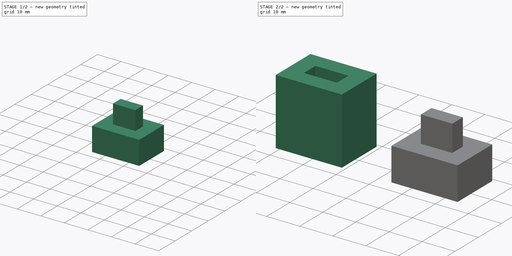
[diagram: build sequence overview — one tinted view per stage of 2, left to right]
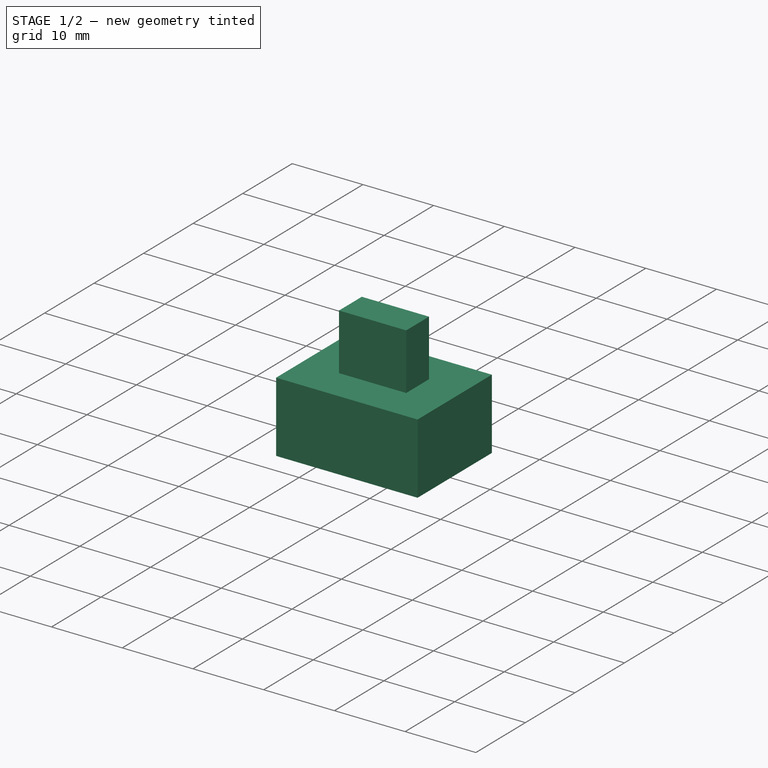
[diagram: stage 1 of 2 — iso view after this stage's code; geometry added in this stage tinted green]
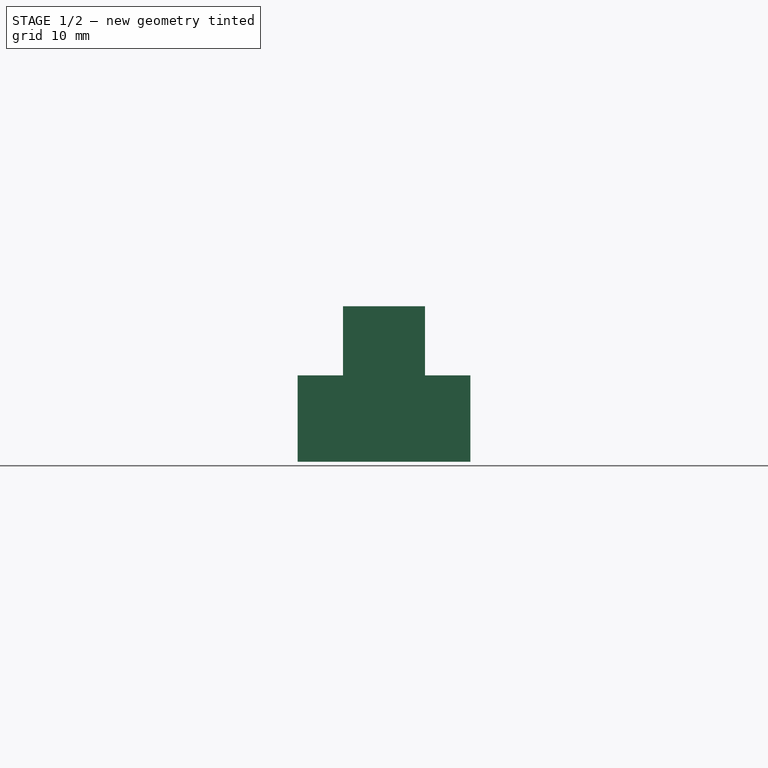
[diagram: stage 1 of 2 — front view after this stage's code; geometry added in this stage tinted green]
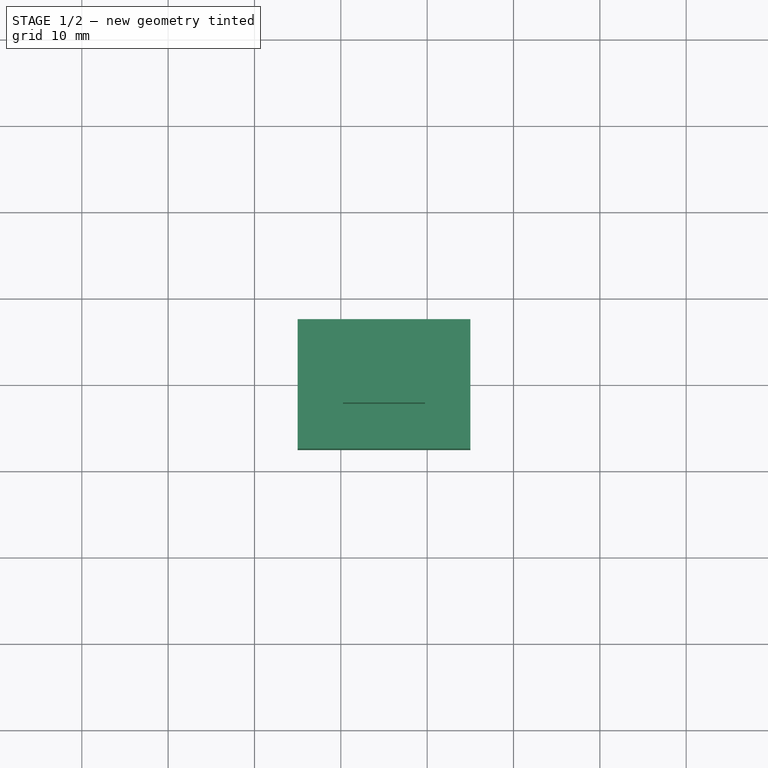
[diagram: stage 1 of 2 — top view after this stage's code; geometry added in this stage tinted green]
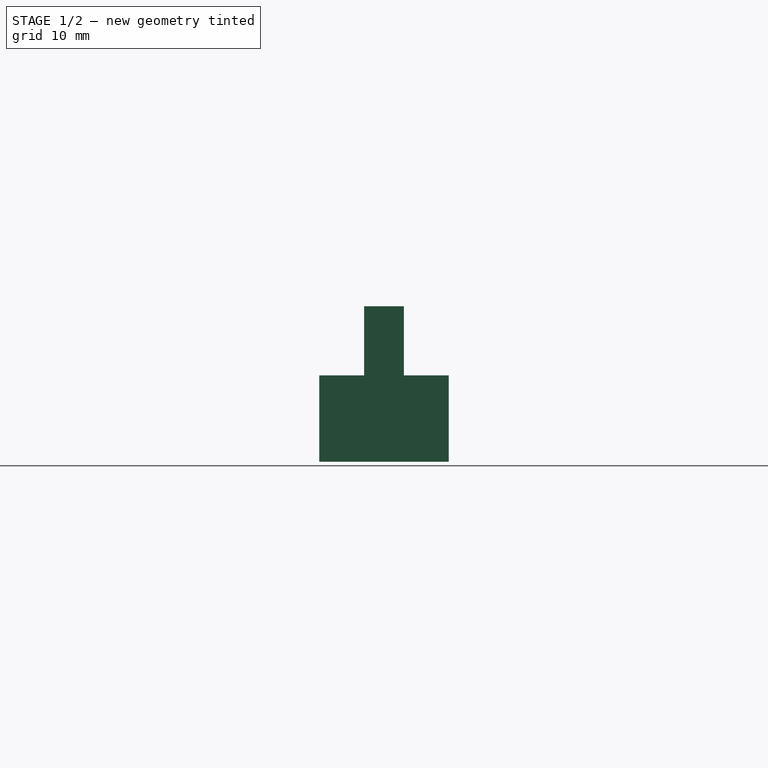
[diagram: stage 1 of 2 — right view after this stage's code; geometry added in this stage tinted green]
FCSTD DOCUMENT  (FreeCAD 2024.207R38947 (Git))
Label: frame_connectors_test
License: All rights reserved
LicenseURL: https://en.wikipedia.org/wiki/All_rights_reserved
objects: Sketcher::SketchObject×4, PartDesign::Pad×3, PartDesign::Body×2, PartDesign::Pocket×1, Part::SubShapeBinder×1
note: 23 computed .brp shape members not serialized (recipe doc carries the construction recipe); baked Part::Feature solids carry a one-line shape summary decoded from their .brp

FEATURE [PartDesign::Body] Body  label="hollow"
  AutoGroupSolids = false
  ClaimAllChildren = false
  ExportMode = 0
  Group = -> [Sketch,Pad,Sketch001,Pocket]
  InvalidShape = false
  Origin = -> Origin
  Tip = -> Pocket
  TreeRank = 10
  ValidateShape = false
  _ExportChildren = -> [Pad,Pocket]
  _GroupVersion = 1
FEATURE [Sketcher::SketchObject] Sketch002
  ArcFitTolerance = 1e-06
  AttachmentSupport = -> [XY_Plane001]
  ExternalBSplineMaxDegree = 5
  ExternalBSplineTolerance = 0.0001
  FullyConstrained = true
  InternalTolerance = 1e-06
  InvalidShape = false
  MakeInternals = false
  MapMode = 5
  Support = -> [XY_Plane001]
  TreeRank = 25
  ValidateShape = false
  sketch-geometry (4):
    g0: LineSegment StartX=25 StartY=7.5 StartZ=0 EndX=45 EndY=7.5 EndZ=0
    g1: LineSegment StartX=45 StartY=7.5 StartZ=0 EndX=45 EndY=-7.5 EndZ=0
    g2: LineSegment StartX=45 StartY=-7.5 StartZ=0 EndX=25 EndY=-7.5 EndZ=0
    g3: LineSegment StartX=25 StartY=-7.5 StartZ=0 EndX=25 EndY=7.5 EndZ=0
  constraints (12):
    c: Coincident(g0,g1)
    c: Coincident(g1,g2)
    c: Coincident(g2,g3)
    c: Coincident(g3,g0)
    c: Horizontal(g0)
    c: Horizontal(g2)
    c: Vertical(g1)
    c: Vertical(g3)
    c: DistanceX(g2,g1) = 20
    c: DistanceY(g2,g0) = 15
    c: DistanceX(g-1,g0) = 25
    c: DistanceY(g-1,g0) = 7.5
FEATURE [Part::SubShapeBinder] Import  label="Import(Pocket)"
  BindCopyOnChange = 0
  BindMode = 0
  ClaimChildren = false
  Context = -> Body001 [Import.]
  EdgeTolerance = 1e-06
  FillStyle = 0
  Fuse = false
  InvalidShape = false
  MakeFace = false
  MergeEdges = true
  OffsetFill = false
  OffsetIntersection = false
  OffsetJoinType = 0
  OffsetOpenResult = false
  Outline = false
  PartialLoad = false
  Relative = true
  SplitEdges = false
  Support = -> [Body[Pocket.]]
  TightBound = false
  TreeRank = 26
  ValidateShape = false
  _Version = 8
FEATURE [PartDesign::Pad] Pad001
  AddSubType = 0
  AlongSketchNormal = false
  AutoTaperInnerAngle = true
  CheckUpToFaceLimits = true
  ClaimChildren = false
  Direction = (0,0,1)
  Fit = 0
  FitJoin = 0
  InnerFit = 0
  InnerFitJoin = 0
  InvalidShape = false
  Length = 10
  Length2 = 10
  Linearize = true
  NewSolid = false
  Profile = -> Sketch002
  ReferenceAxis = -> Sketch002 [N_Axis]
  Suppress = false
  TaperInnerAngle = 0
  TaperInnerAngleRev = 0
  TreeRank = 27
  Type = 0
  ValidateShape = true
  _ProfileBasedVersion = 1
FEATURE [Sketcher::SketchObject] Sketch003
  ArcFitTolerance = 1e-06
  AttachmentSupport = -> [Pad001]
  ExternalBSplineMaxDegree = 5
  ExternalBSplineTolerance = 0.0001
  ExternalGeometry = -> [Pad001]
  FullyConstrained = true
  InternalTolerance = 1e-06
  InvalidShape = false
  MakeInternals = false
  MapMode = 5
  Placement = pos=(0,0,10) rot=(0,0,1;0rad)
  Support = -> [Pad001]
  TreeRank = 28
  ValidateShape = false
  expr: Constraints[7] = 4.6
  sketch-geometry (4):
    g0: LineSegment StartX=30.25 StartY=2.3 StartZ=0 EndX=39.75 EndY=2.3 EndZ=0
    g1: LineSegment StartX=39.75 StartY=2.3 StartZ=0 EndX=39.75 EndY=-2.3 EndZ=0
    g2: LineSegment StartX=39.75 StartY=-2.3 StartZ=0 EndX=30.25 EndY=-2.3 EndZ=0
    g3: LineSegment StartX=30.25 StartY=-2.3 StartZ=0 EndX=30.25 EndY=2.3 EndZ=0
  constraints (11):
    c: Coincident(g0,g1)
    c: Coincident(g1,g2)
    c: Coincident(g2,g3)
    c: Coincident(g3,g0)
    c: Horizontal(g0)
    c: Horizontal(g2)
    c: Vertical(g3)
    c: DistanceY(g1,g0) = 4.6
    c: DistanceX(g2,g1) = 9.5
    c: Symmetric(g1,g0,g-1)
    c: DistanceX(g1,g-4) = 5.25
FEATURE [PartDesign::Pad] Pad002
  AddSubType = 0
  AlongSketchNormal = false
  AutoTaperInnerAngle = true
  BaseFeature = -> Pad001
  CheckUpToFaceLimits = true
  ClaimChildren = false
  Direction = (0,0,1)
  Fit = 0
  FitJoin = 0
  InnerFit = 0
  InnerFitJoin = 0
  InvalidShape = false
  Length = 8
  Length2 = 10
  Linearize = true
  NewSolid = false
  Profile = -> Sketch003
  ReferenceAxis = -> Sketch003 [N_Axis]
  Suppress = false
  TaperInnerAngle = 0
  TaperInnerAngleRev = 0
  TreeRank = 29
  Type = 0
  ValidateShape = true
  _ProfileBasedVersion = 1
FEATURE [PartDesign::Body] Body001  label="extruded"
  AutoGroupSolids = false
  ClaimAllChildren = false
  ExportMode = 0
  Group = -> [Sketch002,Import,Pad001,Sketch003,Pad002]
  InvalidShape = false
  Origin = -> Origin001
  Tip = -> Pad002
  TreeRank = 24
  ValidateShape = false
  _ExportChildren = -> [Import,Pad001,Pad002]
  _GroupVersion = 1
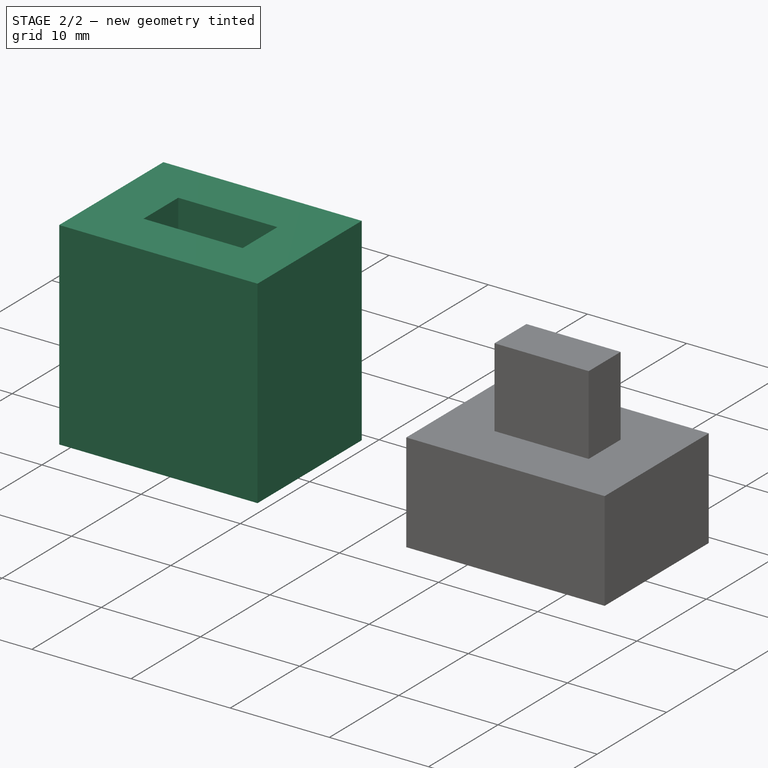
[diagram: stage 2 of 2 — iso view after this stage's code; geometry added in this stage tinted green]
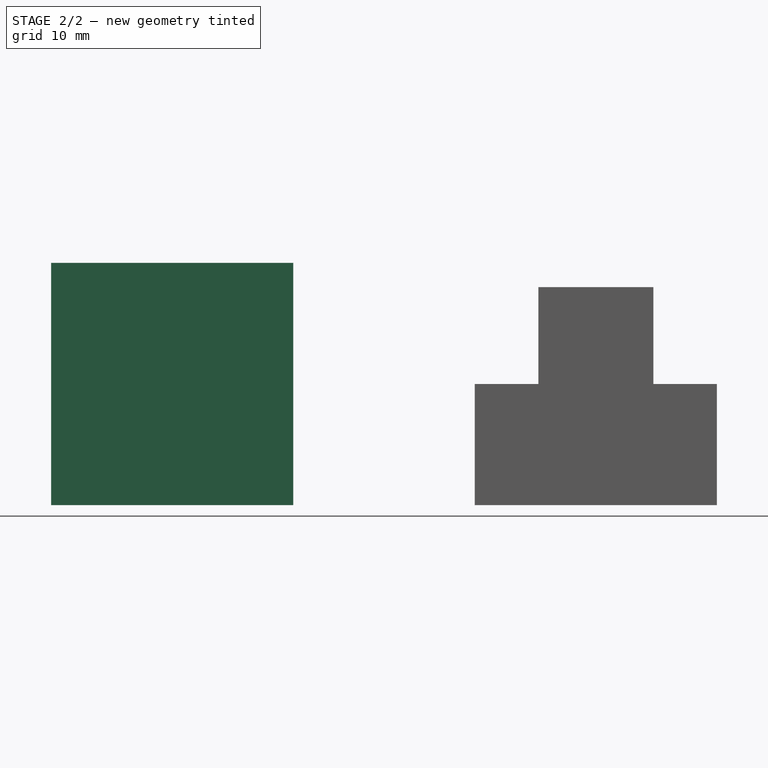
[diagram: stage 2 of 2 — front view after this stage's code; geometry added in this stage tinted green]
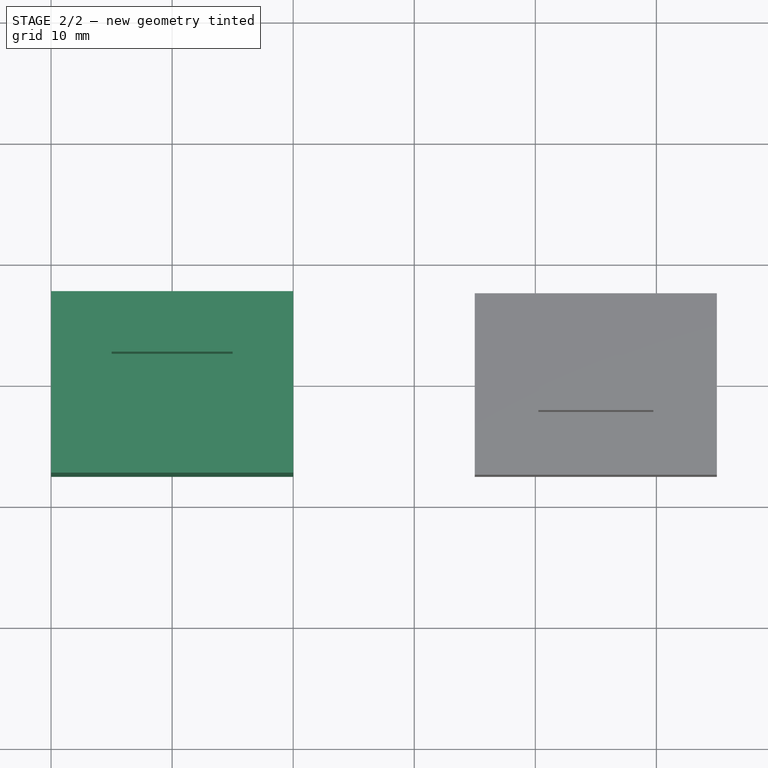
[diagram: stage 2 of 2 — top view after this stage's code; geometry added in this stage tinted green]
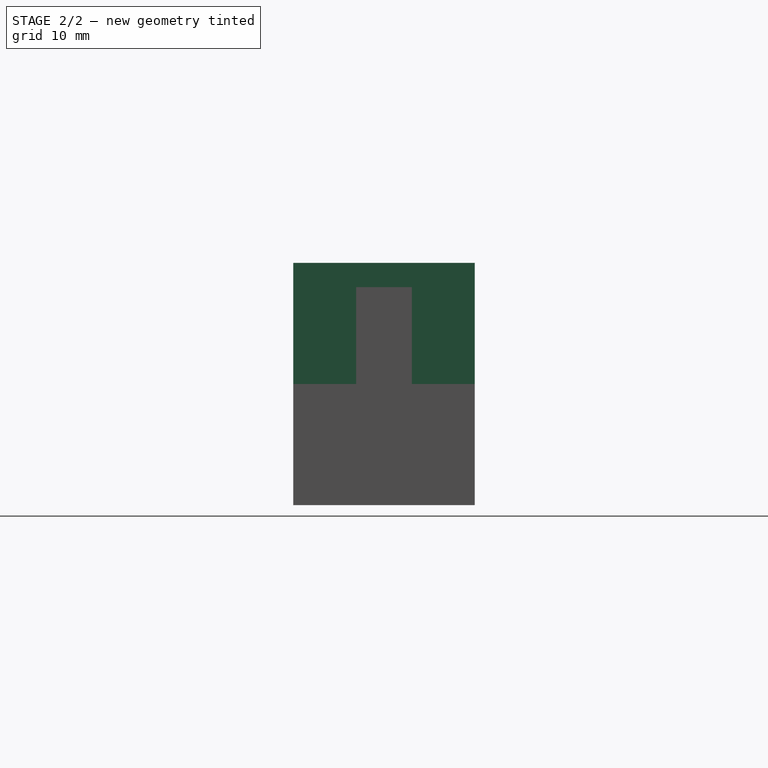
[diagram: stage 2 of 2 — right view after this stage's code; geometry added in this stage tinted green]
FEATURE [Sketcher::SketchObject] Sketch
  ArcFitTolerance = 1e-06
  AttachmentSupport = -> [XY_Plane]
  ExternalBSplineMaxDegree = 5
  ExternalBSplineTolerance = 0.0001
  FullyConstrained = true
  InternalTolerance = 1e-06
  InvalidShape = false
  MakeInternals = false
  MapMode = 2
  Support = -> [XY_Plane]
  TreeRank = 11
  ValidateShape = false
  sketch-geometry (4):
    g0: LineSegment StartX=-10 StartY=7.5 StartZ=0 EndX=10 EndY=7.5 EndZ=0
    g1: LineSegment StartX=10 StartY=7.5 StartZ=0 EndX=10 EndY=-7.5 EndZ=0
    g2: LineSegment StartX=10 StartY=-7.5 StartZ=0 EndX=-10 EndY=-7.5 EndZ=0
    g3: LineSegment StartX=-10 StartY=-7.5 StartZ=0 EndX=-10 EndY=7.5 EndZ=0
  constraints (10):
    c: Coincident(g0,g1)
    c: Coincident(g1,g2)
    c: Coincident(g2,g3)
    c: Coincident(g3,g0)
    c: Horizontal(g2)
    c: Vertical(g3)
    c: DistanceX(g0,g0) = 20
    c: DistanceY(g1,g0) = 15
    c: Symmetric(g0,g0,g-2)
    c: Symmetric(g0,g1,g-1)
FEATURE [PartDesign::Pad] Pad
  AddSubType = 0
  AlongSketchNormal = false
  AutoTaperInnerAngle = true
  CheckUpToFaceLimits = true
  ClaimChildren = false
  Direction = (0,0,1)
  Fit = 0
  FitJoin = 0
  InnerFit = 0
  InnerFitJoin = 0
  InvalidShape = false
  Length = 20
  Length2 = 10
  Linearize = true
  NewSolid = false
  Profile = -> Sketch
  ReferenceAxis = -> Sketch [N_Axis]
  Suppress = false
  TaperInnerAngle = 0
  TaperInnerAngleRev = 0
  TreeRank = 12
  Type = 0
  ValidateShape = true
  _ProfileBasedVersion = 1
FEATURE [Sketcher::SketchObject] Sketch001
  ArcFitTolerance = 1e-06
  AttachmentSupport = -> [Pad]
  ExternalBSplineMaxDegree = 5
  ExternalBSplineTolerance = 0.0001
  FullyConstrained = true
  InternalTolerance = 1e-06
  InvalidShape = false
  MakeInternals = false
  MapMode = 5
  Placement = pos=(0,0,20) rot=(0,0,1;0rad)
  Support = -> [Pad]
  TreeRank = 13
  ValidateShape = false
  sketch-geometry (4):
    g0: LineSegment StartX=-5 StartY=2.5 StartZ=0 EndX=5 EndY=2.5 EndZ=0
    g1: LineSegment StartX=5 StartY=2.5 StartZ=0 EndX=5 EndY=-2.5 EndZ=0
    g2: LineSegment StartX=5 StartY=-2.5 StartZ=0 EndX=-5 EndY=-2.5 EndZ=0
    g3: LineSegment StartX=-5 StartY=-2.5 StartZ=0 EndX=-5 EndY=2.5 EndZ=0
  constraints (10):
    c: Coincident(g0,g1)
    c: Coincident(g1,g2)
    c: Coincident(g2,g3)
    c: Coincident(g3,g0)
    c: Horizontal(g2)
    c: Vertical(g3)
    c: DistanceX(g0,g0) = 10
    c: DistanceY(g1,g0) = 5
    c: Symmetric(g0,g1,g-1)
    c: Symmetric(g0,g0,g-2)
FEATURE [PartDesign::Pocket] Pocket
  AddSubType = 1
  AlongSketchNormal = false
  AutoTaperInnerAngle = true
  BaseFeature = -> Pad
  CheckUpToFaceLimits = true
  ClaimChildren = false
  Direction = (0,0,-1)
  Fit = 0
  FitJoin = 0
  InnerFit = 0
  InnerFitJoin = 0
  InvalidShape = false
  Length = 10
  Length2 = 10
  Linearize = true
  NewSolid = false
  Profile = -> Sketch001
  ReferenceAxis = -> Sketch001 [N_Axis]
  Suppress = false
  TaperInnerAngle = 0
  TaperInnerAngleRev = 0
  TreeRank = 14
  Type = 0
  ValidateShape = true
  _ProfileBasedVersion = 1
  _Version = 1
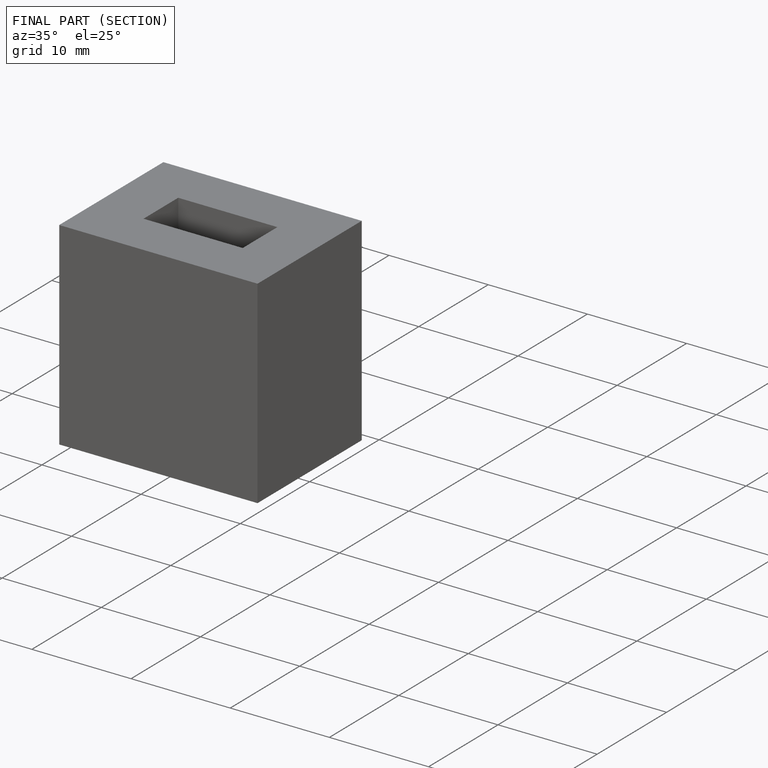
[diagram: finished part — half-section view (interior)]
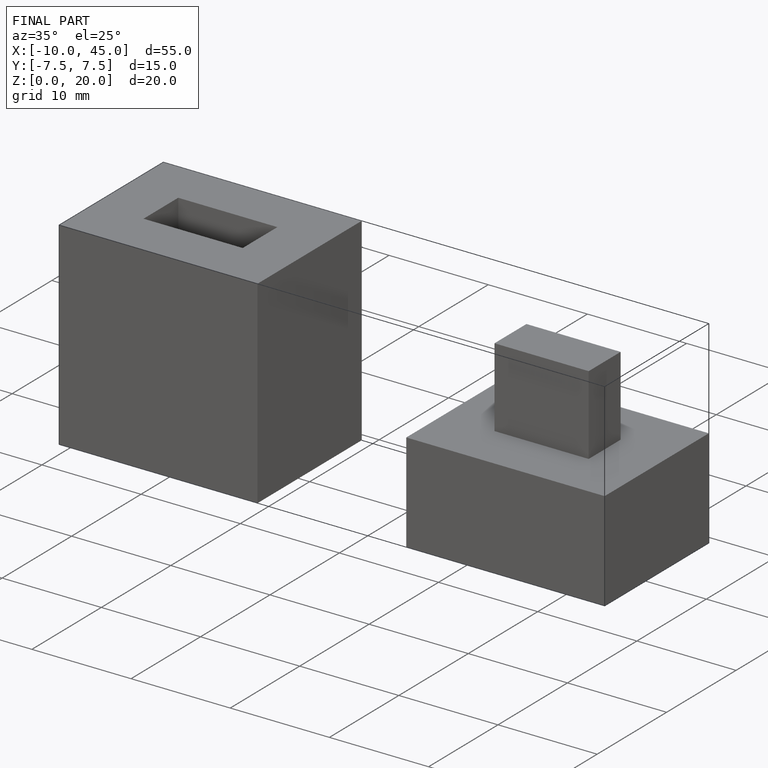
[diagram: finished part — iso view with bounding-box wireframe]
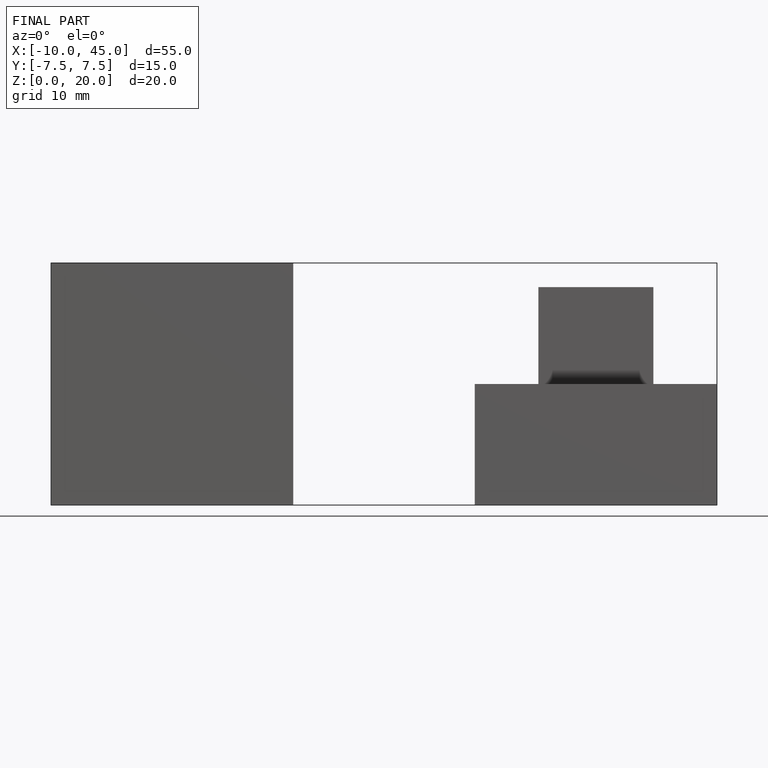
[diagram: finished part — front view with bounding-box wireframe]
